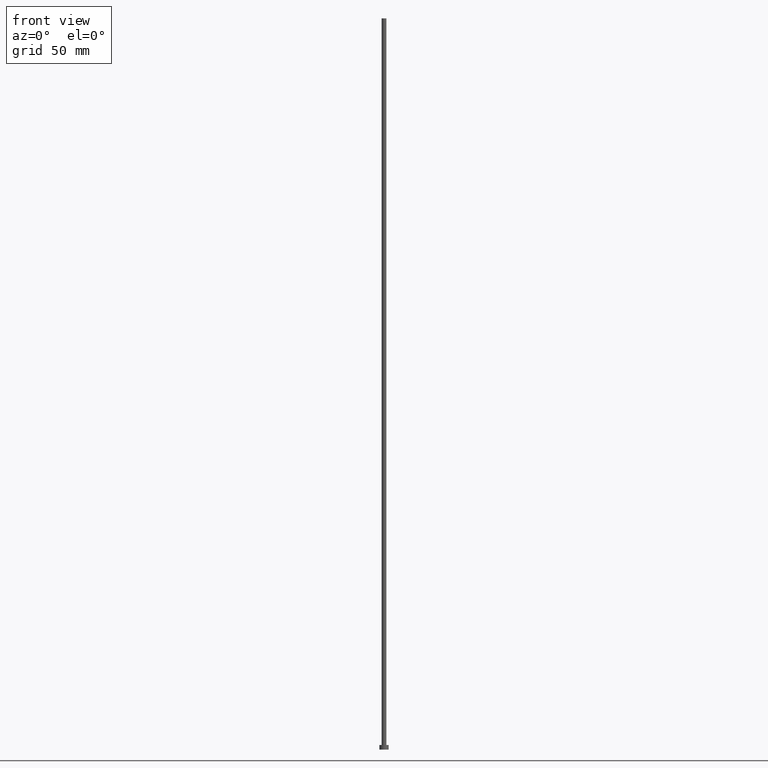
[diagram: clean part render]
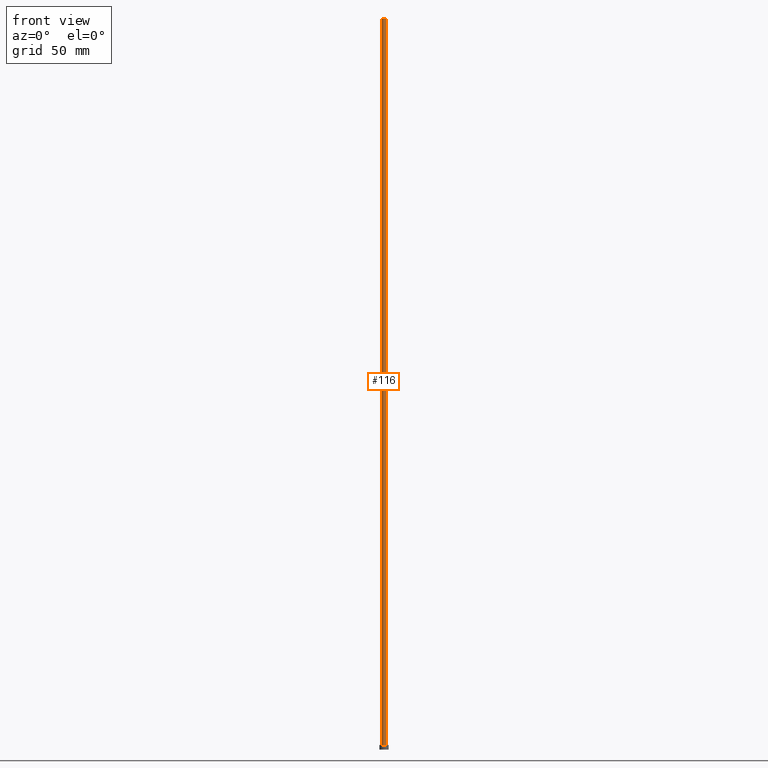
[diagram: same view with one face highlighted and labeled with its STEP entity id]
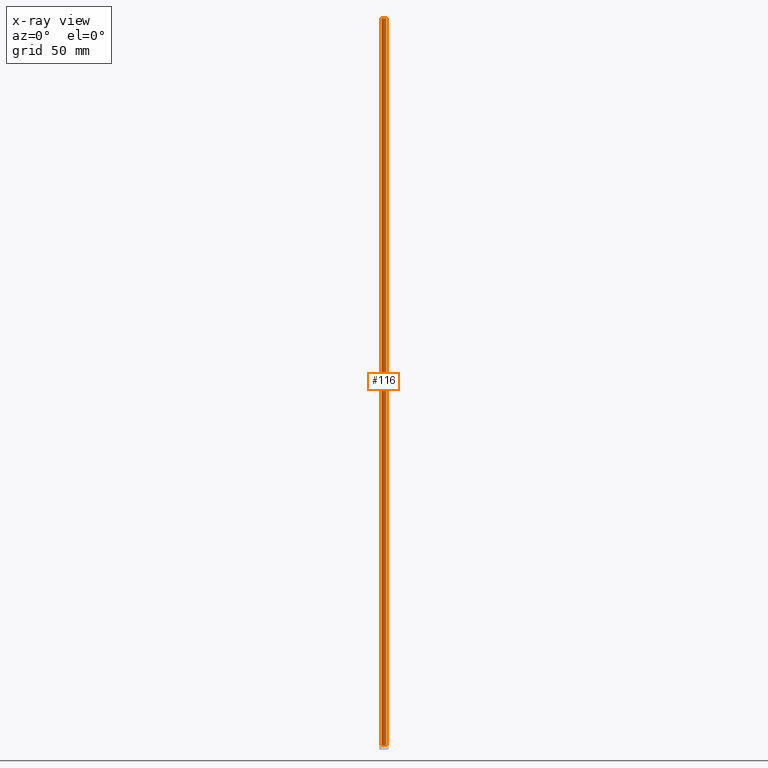
[diagram: x-ray of the same camera — body ghosted, the highlighted face saturated]
A machine part, front view. The second image highlights one B-rep face of the part: STEP entity #116.
The next image is the same camera in x-ray: the body ghosted, the highlighted face saturated — about 0% of this face is hidden behind the body in this view.
In plain terms, the highlighted cylindrical surface (edge-blend (fillet) strip) has radius 1 mm, axis along (-0, -0, -1).
Its self-contained STEP definition (entity closure, byte-faithful):
#4 = CIRCLE ( 'NONE', #142, 1.000000000000000000 ) ;
#19 = CARTESIAN_POINT ( 'NONE',  ( 0.000000000000000000, 0.000000000000000000, 315.0000000000000000 ) ) ;
#21 = LINE ( 'NONE', #165, #148 ) ;
#22 = DIRECTION ( 'NONE',  ( -1.000000000000000000, 0.000000000000000000, 0.000000000000000000 ) ) ;
#25 = CARTESIAN_POINT ( 'NONE',  ( -1.000000000000000000, 0.000000000000000000, 315.0000000000000000 ) ) ;
#35 = ORIENTED_EDGE ( 'NONE', *, *, #181, .F. ) ;
#43 = DIRECTION ( 'NONE',  ( -0.000000000000000000, -0.000000000000000000, -1.000000000000000000 ) ) ;
#46 = VERTEX_POINT ( 'NONE', #176 ) ;
#60 = CARTESIAN_POINT ( 'NONE',  ( 0.000000000000000000, 0.000000000000000000, 315.0000000000000000 ) ) ;
#61 = DIRECTION ( 'NONE',  ( 0.000000000000000000, 0.000000000000000000, 1.000000000000000000 ) ) ;
#64 = EDGE_LOOP ( 'NONE', ( #35, #186, #137, #220 ) ) ;
#77 = DIRECTION ( 'NONE',  ( -0.000000000000000000, -0.000000000000000000, -1.000000000000000000 ) ) ;
#95 = CIRCLE ( 'NONE', #213, 1.000000000000000000 ) ;
#103 = CARTESIAN_POINT ( 'NONE',  ( 1.000000000000000000, 1.224646799147353207E-16, 315.0000000000000000 ) ) ;
#116 = ADVANCED_FACE ( 'NONE', ( #200 ), #174, .T. ) ;
#122 = VERTEX_POINT ( 'NONE', #103 ) ;
#132 = VERTEX_POINT ( 'NONE', #178 ) ;
#135 = DIRECTION ( 'NONE',  ( 0.000000000000000000, 0.000000000000000000, 1.000000000000000000 ) ) ;
#137 = ORIENTED_EDGE ( 'NONE', *, *, #163, .T. ) ;
#139 = AXIS2_PLACEMENT_3D ( 'NONE', #19, #208, #22 ) ;
#142 = AXIS2_PLACEMENT_3D ( 'NONE', #60, #135, #203 ) ;
#145 = DIRECTION ( 'NONE',  ( 1.000000000000000000, 0.000000000000000000, 0.000000000000000000 ) ) ;
#148 = VECTOR ( 'NONE', #43, 1000.000000000000000 ) ;
#163 = EDGE_CURVE ( 'NONE', #132, #242, #222, .T. ) ;
#165 = CARTESIAN_POINT ( 'NONE',  ( 1.000000000000000000, 1.224646799147353207E-16, 315.0000000000000000 ) ) ;
#167 = VECTOR ( 'NONE', #77, 1000.000000000000000 ) ;
#174 = CYLINDRICAL_SURFACE ( 'NONE', #139, 1.000000000000000000 ) ;
#176 = CARTESIAN_POINT ( 'NONE',  ( 1.000000000000000000, 1.224646799147353207E-16, 2.000000000000000000 ) ) ;
#178 = CARTESIAN_POINT ( 'NONE',  ( -1.000000000000000000, 0.000000000000000000, 315.0000000000000000 ) ) ;
#181 = EDGE_CURVE ( 'NONE', #122, #46, #21, .T. ) ;
#182 = CARTESIAN_POINT ( 'NONE',  ( 0.000000000000000000, 0.000000000000000000, 2.000000000000000000 ) ) ;
#186 = ORIENTED_EDGE ( 'NONE', *, *, #212, .F. ) ;
#200 = FACE_OUTER_BOUND ( 'NONE', #64, .T. ) ;
#203 = DIRECTION ( 'NONE',  ( 1.000000000000000000, 0.000000000000000000, 0.000000000000000000 ) ) ;
#208 = DIRECTION ( 'NONE',  ( -0.000000000000000000, -0.000000000000000000, -1.000000000000000000 ) ) ;
#212 = EDGE_CURVE ( 'NONE', #132, #122, #4, .T. ) ;
#213 = AXIS2_PLACEMENT_3D ( 'NONE', #182, #61, #145 ) ;
#220 = ORIENTED_EDGE ( 'NONE', *, *, #228, .T. ) ;
#222 = LINE ( 'NONE', #25, #167 ) ;
#227 = CARTESIAN_POINT ( 'NONE',  ( -1.000000000000000000, 0.000000000000000000, 2.000000000000000000 ) ) ;
#228 = EDGE_CURVE ( 'NONE', #242, #46, #95, .T. ) ;
#242 = VERTEX_POINT ( 'NONE', #227 ) ;